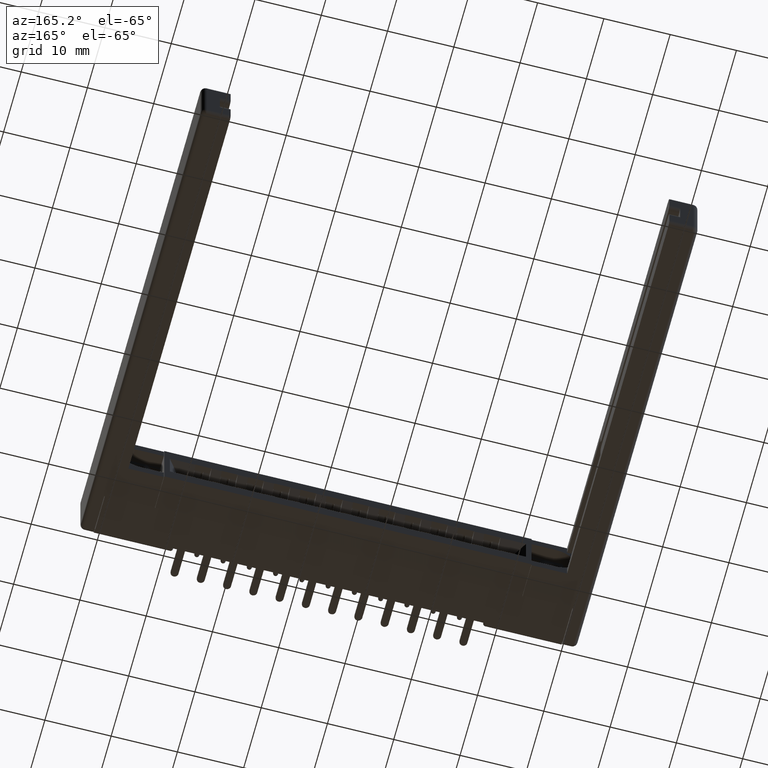
[diagram: clean part render]
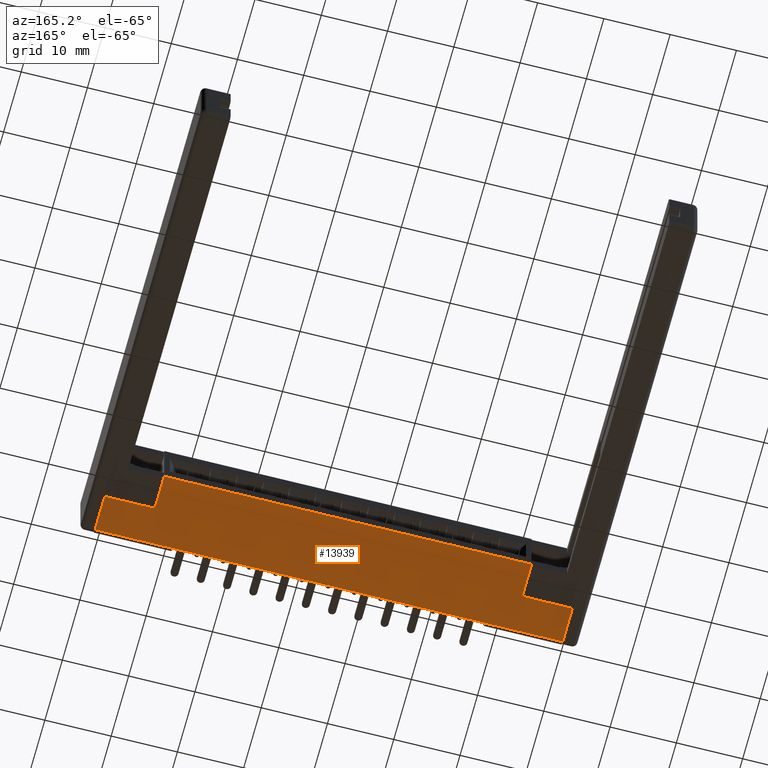
[diagram: same view with one face highlighted and labeled with its STEP entity id]
A machine part, auxiliary view. The second image highlights one B-rep face of the part: STEP entity #13939.
In plain terms, the highlighted planar face has unit normal (0, 0, 1).
Its self-contained STEP definition (entity closure, byte-faithful):
#105 = EDGE_CURVE ( 'NONE', #13408, #11102, #8588, .T. ) ;
#145 = FACE_OUTER_BOUND ( 'NONE', #7268, .T. ) ;
#280 = VECTOR ( 'NONE', #6207, 39.37007874015748143 ) ;
#353 = CARTESIAN_POINT ( 'NONE',  ( 0.0000000000000000000, 0.2500000000000000555, -0.3430000000000000271 ) ) ;
#740 = CARTESIAN_POINT ( 'NONE',  ( 2.480000000000000426, 0.2500000000000000555, -0.3429999999999995275 ) ) ;
#784 = ORIENTED_EDGE ( 'NONE', *, *, #2946, .T. ) ;
#1066 = VERTEX_POINT ( 'NONE', #14635 ) ;
#1705 = LINE ( 'NONE', #15254, #16759 ) ;
#1951 = EDGE_CURVE ( 'NONE', #11102, #11358, #3865, .T. ) ;
#1987 = VERTEX_POINT ( 'NONE', #2584 ) ;
#2584 = CARTESIAN_POINT ( 'NONE',  ( 0.0000000000000000000, 0.2500000000000000555, -0.3430000000000000271 ) ) ;
#2675 = ORIENTED_EDGE ( 'NONE', *, *, #15291, .F. ) ;
#2736 = EDGE_CURVE ( 'NONE', #4646, #13408, #16088, .T. ) ;
#2836 = DIRECTION ( 'NONE',  ( 0.0000000000000000000, 0.0000000000000000000, 1.000000000000000000 ) ) ;
#2866 = LINE ( 'NONE', #353, #14801 ) ;
#2946 = EDGE_CURVE ( 'NONE', #1066, #14770, #6790, .T. ) ;
#3302 = ORIENTED_EDGE ( 'NONE', *, *, #1951, .F. ) ;
#3492 = ORIENTED_EDGE ( 'NONE', *, *, #2736, .F. ) ;
#3820 = AXIS2_PLACEMENT_3D ( 'NONE', #11063, #2836, #14696 ) ;
#3865 = LINE ( 'NONE', #14418, #280 ) ;
#4524 = DIRECTION ( 'NONE',  ( -0.0000000000000000000, 1.000000000000000000, -0.0000000000000000000 ) ) ;
#4646 = VERTEX_POINT ( 'NONE', #7149 ) ;
#5350 = DIRECTION ( 'NONE',  ( -1.000000000000000000, -0.0000000000000000000, -0.0000000000000000000 ) ) ;
#5584 = DIRECTION ( 'NONE',  ( -1.000000000000000000, -0.0000000000000000000, -0.0000000000000000000 ) ) ;
#5865 = CARTESIAN_POINT ( 'NONE',  ( 2.480000000000000426, 0.2500000000000000555, -0.3429999999999995275 ) ) ;
#6207 = DIRECTION ( 'NONE',  ( -1.000000000000000000, -0.0000000000000000000, -0.0000000000000000000 ) ) ;
#6616 = VECTOR ( 'NONE', #4524, 39.37007874015748143 ) ;
#6790 = LINE ( 'NONE', #12302, #7134 ) ;
#7134 = VECTOR ( 'NONE', #5350, 39.37007874015748143 ) ;
#7149 = CARTESIAN_POINT ( 'NONE',  ( 2.778000000000000469, 0.2500000000000000555, -0.3430000000000000271 ) ) ;
#7216 = DIRECTION ( 'NONE',  ( -0.0000000000000000000, -1.000000000000000000, -0.0000000000000000000 ) ) ;
#7268 = EDGE_LOOP ( 'NONE', ( #3302, #9436, #3492, #11865, #784, #15187, #2675, #14249 ) ) ;
#7792 = CARTESIAN_POINT ( 'NONE',  ( 0.2979999999999998761, 0.4600000000000000200, -0.3430000000000000271 ) ) ;
#8588 = LINE ( 'NONE', #5865, #6616 ) ;
#9436 = ORIENTED_EDGE ( 'NONE', *, *, #105, .F. ) ;
#9770 = LINE ( 'NONE', #15276, #12151 ) ;
#9965 = CARTESIAN_POINT ( 'NONE',  ( 0.2979999999999999871, 0.2500000000000000555, -0.3430000000000000271 ) ) ;
#10577 = EDGE_CURVE ( 'NONE', #11205, #11358, #15071, .T. ) ;
#10652 = DIRECTION ( 'NONE',  ( -0.0000000000000000000, 1.000000000000000000, -0.0000000000000000000 ) ) ;
#11063 = CARTESIAN_POINT ( 'NONE',  ( 0.0000000000000000000, 0.4600000000000000200, -0.3430000000000000271 ) ) ;
#11102 = VERTEX_POINT ( 'NONE', #13935 ) ;
#11150 = PLANE ( 'NONE',  #3820 ) ;
#11205 = VERTEX_POINT ( 'NONE', #9965 ) ;
#11358 = VERTEX_POINT ( 'NONE', #7792 ) ;
#11538 = EDGE_CURVE ( 'NONE', #1987, #14770, #9770, .T. ) ;
#11862 = DIRECTION ( 'NONE',  ( -1.000000000000000000, 0.0000000000000000000, 1.604273150641765916E-15 ) ) ;
#11865 = ORIENTED_EDGE ( 'NONE', *, *, #13617, .T. ) ;
#12142 = VECTOR ( 'NONE', #11862, 39.37007874015748143 ) ;
#12151 = VECTOR ( 'NONE', #15371, 39.37007874015748143 ) ;
#12302 = CARTESIAN_POINT ( 'NONE',  ( 2.778000000000000469, 0.03099999999999999978, -0.3430000000000000271 ) ) ;
#12404 = VECTOR ( 'NONE', #10652, 39.37007874015748143 ) ;
#13027 = CARTESIAN_POINT ( 'NONE',  ( 2.778000000000000469, 0.2500000000000000555, -0.3430000000000000271 ) ) ;
#13408 = VERTEX_POINT ( 'NONE', #740 ) ;
#13529 = CARTESIAN_POINT ( 'NONE',  ( 0.2979999999999998761, 0.2500000000000000555, -0.3430000000000000271 ) ) ;
#13617 = EDGE_CURVE ( 'NONE', #4646, #1066, #1705, .T. ) ;
#13935 = CARTESIAN_POINT ( 'NONE',  ( 2.480000000000000426, 0.4600000000000000200, -0.3429999999999995275 ) ) ;
#13939 = ADVANCED_FACE ( 'NONE', ( #145 ), #11150, .F. ) ;
#14249 = ORIENTED_EDGE ( 'NONE', *, *, #10577, .T. ) ;
#14418 = CARTESIAN_POINT ( 'NONE',  ( 0.0000000000000000000, 0.4600000000000000200, -0.3430000000000000271 ) ) ;
#14635 = CARTESIAN_POINT ( 'NONE',  ( 2.778000000000000469, 0.03099999999999999978, -0.3430000000000000271 ) ) ;
#14696 = DIRECTION ( 'NONE',  ( 1.000000000000000000, 0.0000000000000000000, -0.0000000000000000000 ) ) ;
#14770 = VERTEX_POINT ( 'NONE', #17670 ) ;
#14801 = VECTOR ( 'NONE', #5584, 39.37007874015748143 ) ;
#15071 = LINE ( 'NONE', #13529, #12404 ) ;
#15187 = ORIENTED_EDGE ( 'NONE', *, *, #11538, .F. ) ;
#15254 = CARTESIAN_POINT ( 'NONE',  ( 2.778000000000000469, 0.4600000000000000200, -0.3430000000000000271 ) ) ;
#15276 = CARTESIAN_POINT ( 'NONE',  ( 0.0000000000000000000, 0.4600000000000000200, -0.3430000000000000271 ) ) ;
#15291 = EDGE_CURVE ( 'NONE', #11205, #1987, #2866, .T. ) ;
#15371 = DIRECTION ( 'NONE',  ( -0.0000000000000000000, -1.000000000000000000, -0.0000000000000000000 ) ) ;
#16088 = LINE ( 'NONE', #13027, #12142 ) ;
#16759 = VECTOR ( 'NONE', #7216, 39.37007874015748143 ) ;
#17670 = CARTESIAN_POINT ( 'NONE',  ( 0.0000000000000000000, 0.03099999999999999978, -0.3430000000000000271 ) ) ;